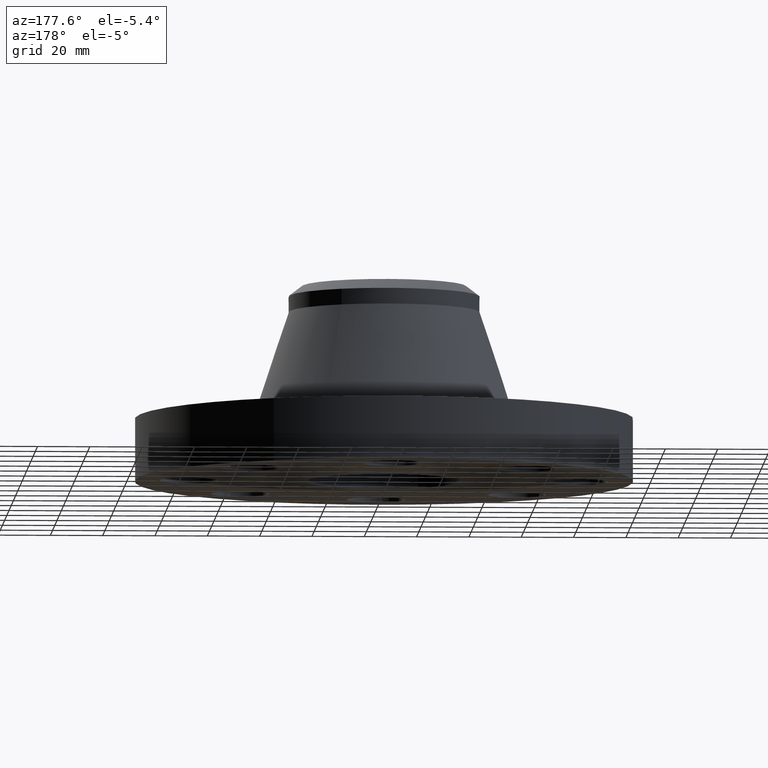
[diagram: clean part render]
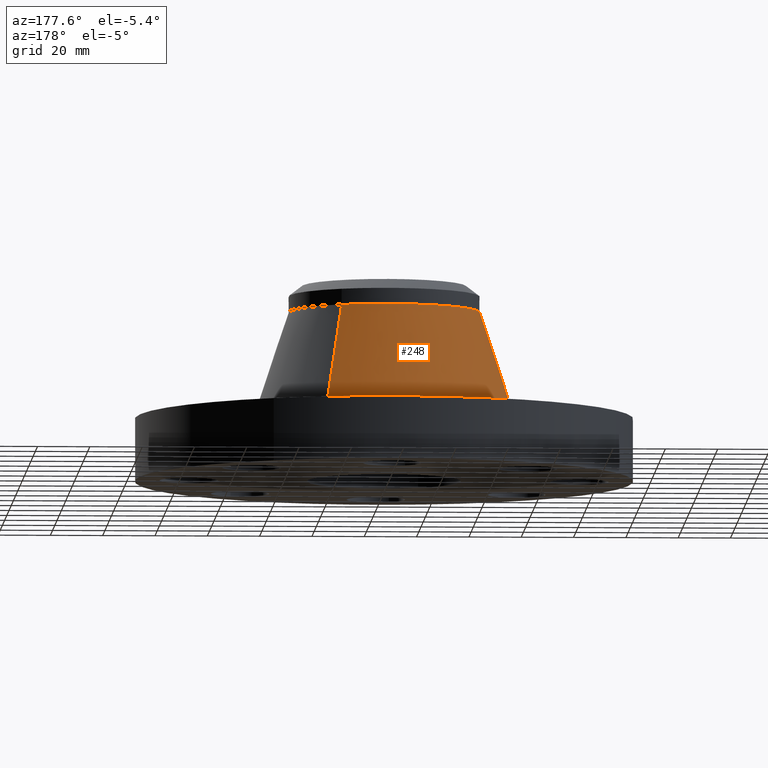
[diagram: same view with one face highlighted and labeled with its STEP entity id]
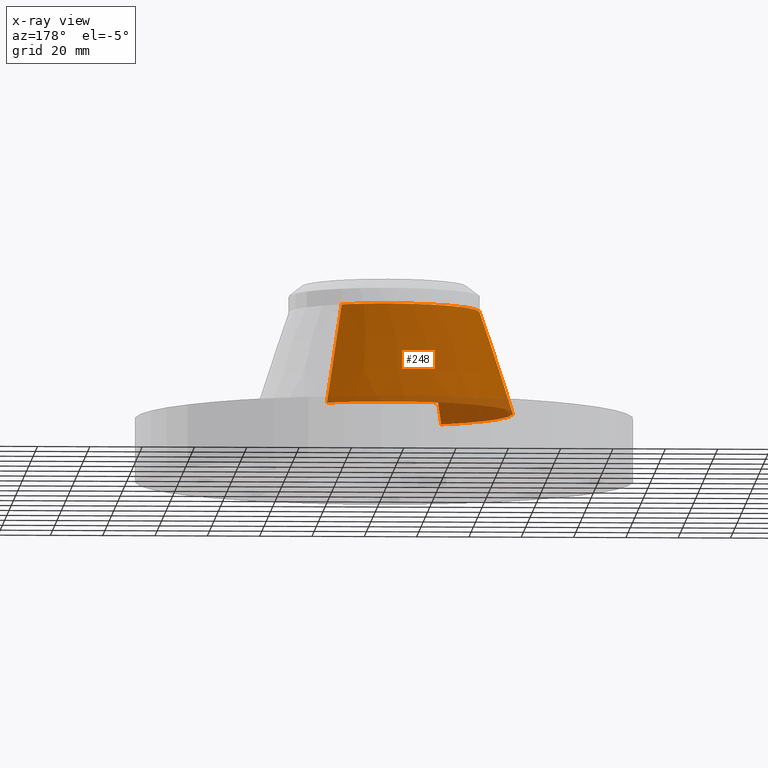
[diagram: x-ray of the same camera — body ghosted, the highlighted face saturated]
A machine part, auxiliary view. The second image highlights one B-rep face of the part: STEP entity #248.
The next image is the same camera in x-ray: the body ghosted, the highlighted face saturated — about 14% of this face is hidden behind the body in this view.
In plain terms, the highlighted conical surface has half-angle 18.216 deg.
Its self-contained STEP definition (entity closure, byte-faithful):
#196=AXIS2_PLACEMENT_3D('Circle Axis2P3D',#194,#195,$) ;
#209=AXIS2_PLACEMENT_3D('Cone Axis2P3D',#206,#207,#208) ;
#239=AXIS2_PLACEMENT_3D('Circle Axis2P3D',#237,#238,$) ;
#167=CARTESIAN_POINT('Vertex',(0.931453780437,1.70501470843,1.0224881902)) ;
#174=CARTESIAN_POINT('Vertex',(-0.931453780437,-1.70501470843,1.0224881902)) ;
#194=CARTESIAN_POINT('Axis2P3D Location',(0.,0.,1.0224881902)) ;
#206=CARTESIAN_POINT('Axis2P3D Location',(0.,0.,2.55049840929)) ;
#211=CARTESIAN_POINT('Line Origine',(0.810913278015,1.48436679878,1.78649329974)) ;
#215=CARTESIAN_POINT('Vertex',(0.690372775593,1.26371888913,2.55049840929)) ;
#222=CARTESIAN_POINT('Vertex',(-0.690372775593,-1.26371888913,2.55049840929)) ;
#225=CARTESIAN_POINT('Line Origine',(-0.810913278015,-1.48436679878,1.78649329974)) ;
#237=CARTESIAN_POINT('Axis2P3D Location',(0.,0.,2.55049840929)) ;
#195=DIRECTION('Axis2P3D Direction',(0.,0.,-0.0393700787402)) ;
#207=DIRECTION('Axis2P3D Direction',(0.,0.,-0.0393700787402)) ;
#208=DIRECTION('Axis2P3D XDirection',(-0.0188750212049,-0.0345504945626,0.)) ;
#212=DIRECTION('Vector Direction',(0.00590030171309,0.0108004298402,-0.0373970621168)) ;
#226=DIRECTION('Vector Direction',(-0.00590030171309,-0.0108004298402,-0.0373970621168)) ;
#238=DIRECTION('Axis2P3D Direction',(0.,0.,-0.0393700787402)) ;
#213=VECTOR('Line Direction',#212,0.0393700787402) ;
#227=VECTOR('Line Direction',#226,0.0393700787402) ;
#243=ORIENTED_EDGE('',*,*,#198,.F.) ;
#244=ORIENTED_EDGE('',*,*,#229,.T.) ;
#245=ORIENTED_EDGE('',*,*,#241,.T.) ;
#246=ORIENTED_EDGE('',*,*,#217,.F.) ;
#248=ADVANCED_FACE('PartBody',(#247),#210,.T.) ;
#197=CIRCLE('generated circle',#196,1.94285390626) ;
#240=CIRCLE('generated circle',#239,1.44000000001) ;
#210=CONICAL_SURFACE('Cone',#209,1.44000000001,0.317927309475) ;
#198=EDGE_CURVE('',#175,#168,#197,.T.) ;
#217=EDGE_CURVE('',#168,#216,#214,.F.) ;
#229=EDGE_CURVE('',#175,#223,#228,.F.) ;
#241=EDGE_CURVE('',#223,#216,#240,.T.) ;
#242=EDGE_LOOP('',(#243,#244,#245,#246)) ;
#247=FACE_OUTER_BOUND('',#242,.T.) ;
#214=LINE('Line',#211,#213) ;
#228=LINE('Line',#225,#227) ;
#168=VERTEX_POINT('',#167) ;
#175=VERTEX_POINT('',#174) ;
#216=VERTEX_POINT('',#215) ;
#223=VERTEX_POINT('',#222) ;